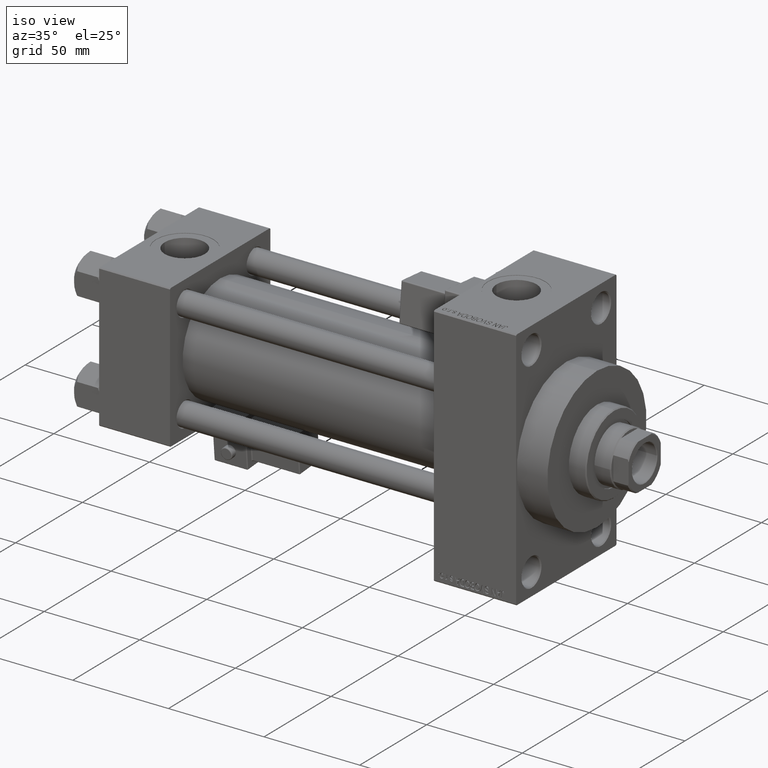
[diagram: clean part render]
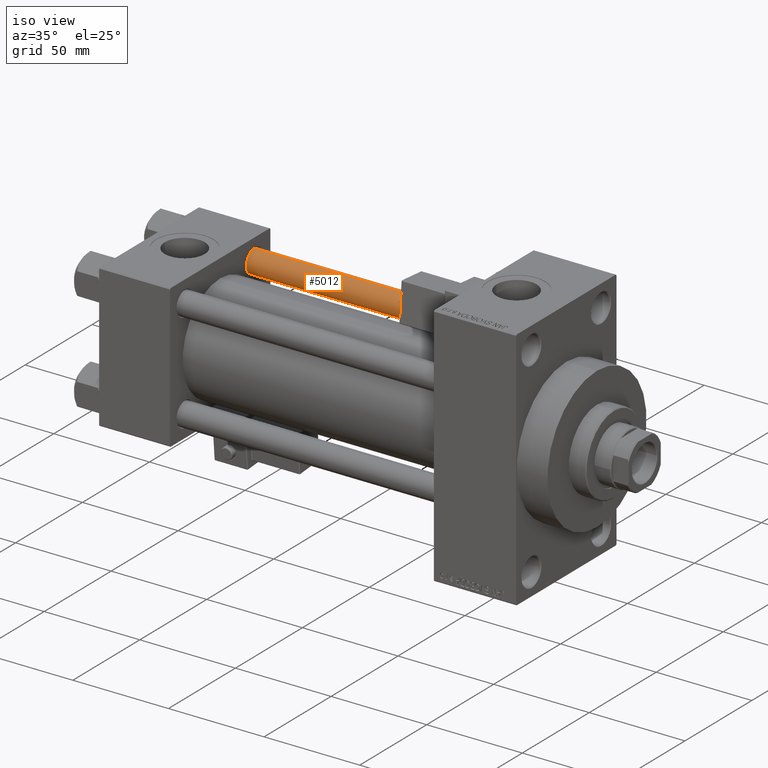
[diagram: same view with one face highlighted and labeled with its STEP entity id]
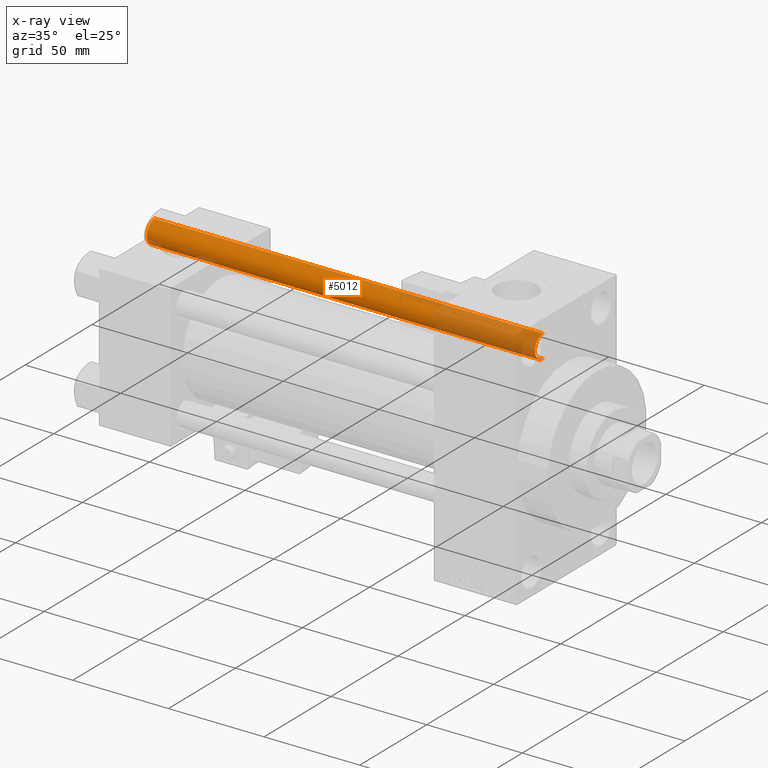
[diagram: x-ray of the same camera — body ghosted, the highlighted face saturated]
A machine part, iso view. The second image highlights one B-rep face of the part: STEP entity #5012.
The next image is the same camera in x-ray: the body ghosted, the highlighted face saturated — about 30% of this face is hidden behind the body in this view.
In plain terms, the highlighted cylindrical surface (edge-blend (fillet) strip) has radius 6 mm, axis along (1, -0, -0).
Its self-contained STEP definition (entity closure, byte-faithful):
#203 = DIRECTION ( 'NONE',  ( -0.000000000000000000, -0.000000000000000000, -1.000000000000000000 ) ) ;
#806 = DIRECTION ( 'NONE',  ( 0.000000000000000000, 0.000000000000000000, -1.000000000000000000 ) ) ;
#2845 = CIRCLE ( 'NONE', #37181, 6.000000000000000888 ) ;
#4430 = CARTESIAN_POINT ( 'NONE',  ( 6.000000000000000888, 7.347880794884120722E-16, 204.0000000000000000 ) ) ;
#5012 = ADVANCED_FACE ( 'NONE', ( #43100 ), #8858, .T. ) ;
#5160 = CARTESIAN_POINT ( 'NONE',  ( 6.000000000000000888, 7.347880794884120722E-16, 203.5000000000000000 ) ) ;
#6825 = CARTESIAN_POINT ( 'NONE',  ( -6.000000000000000888, 0.000000000000000000, 203.5000000000000000 ) ) ;
#8211 = CARTESIAN_POINT ( 'NONE',  ( 6.000000000000000888, 7.347880794884120722E-16, 0.5000000000000281997 ) ) ;
#8858 = CYLINDRICAL_SURFACE ( 'NONE', #32470, 6.000000000000000888 ) ;
#9591 = CARTESIAN_POINT ( 'NONE',  ( 0.000000000000000000, 0.000000000000000000, 204.0000000000000000 ) ) ;
#10272 = ORIENTED_EDGE ( 'NONE', *, *, #39549, .F. ) ;
#11433 = LINE ( 'NONE', #26698, #42514 ) ;
#12290 = DIRECTION ( 'NONE',  ( 1.000000000000000000, 0.000000000000000000, 0.000000000000000000 ) ) ;
#16897 = DIRECTION ( 'NONE',  ( 1.000000000000000000, 0.000000000000000000, 0.000000000000000000 ) ) ;
#18686 = VECTOR ( 'NONE', #203, 1000.000000000000000 ) ;
#20122 = ORIENTED_EDGE ( 'NONE', *, *, #32682, .T. ) ;
#22934 = DIRECTION ( 'NONE',  ( -0.000000000000000000, -0.000000000000000000, -1.000000000000000000 ) ) ;
#23884 = EDGE_CURVE ( 'NONE', #33738, #32689, #11433, .T. ) ;
#26698 = CARTESIAN_POINT ( 'NONE',  ( -6.000000000000000888, 0.000000000000000000, 204.0000000000000000 ) ) ;
#27459 = ORIENTED_EDGE ( 'NONE', *, *, #23884, .T. ) ;
#28159 = DIRECTION ( 'NONE',  ( -0.000000000000000000, -0.000000000000000000, 1.000000000000000000 ) ) ;
#32108 = DIRECTION ( 'NONE',  ( -0.000000000000000000, -0.000000000000000000, -1.000000000000000000 ) ) ;
#32470 = AXIS2_PLACEMENT_3D ( 'NONE', #9591, #32108, #35620 ) ;
#32682 = EDGE_CURVE ( 'NONE', #32689, #40288, #2845, .T. ) ;
#32689 = VERTEX_POINT ( 'NONE', #47125 ) ;
#33738 = VERTEX_POINT ( 'NONE', #6825 ) ;
#33994 = AXIS2_PLACEMENT_3D ( 'NONE', #43762, #806, #12290 ) ;
#34354 = VERTEX_POINT ( 'NONE', #5160 ) ;
#34689 = LINE ( 'NONE', #4430, #18686 ) ;
#35620 = DIRECTION ( 'NONE',  ( -1.000000000000000000, 0.000000000000000000, 0.000000000000000000 ) ) ;
#36175 = ORIENTED_EDGE ( 'NONE', *, *, #43902, .T. ) ;
#37181 = AXIS2_PLACEMENT_3D ( 'NONE', #43138, #28159, #16897 ) ;
#39549 = EDGE_CURVE ( 'NONE', #34354, #40288, #34689, .T. ) ;
#39942 = EDGE_LOOP ( 'NONE', ( #10272, #36175, #27459, #20122 ) ) ;
#40288 = VERTEX_POINT ( 'NONE', #8211 ) ;
#40369 = CIRCLE ( 'NONE', #33994, 6.000000000000000888 ) ;
#42514 = VECTOR ( 'NONE', #22934, 1000.000000000000000 ) ;
#43100 = FACE_OUTER_BOUND ( 'NONE', #39942, .T. ) ;
#43138 = CARTESIAN_POINT ( 'NONE',  ( 0.000000000000000000, 0.000000000000000000, 0.5000000000000281997 ) ) ;
#43762 = CARTESIAN_POINT ( 'NONE',  ( 0.000000000000000000, 0.000000000000000000, 203.5000000000000000 ) ) ;
#43902 = EDGE_CURVE ( 'NONE', #34354, #33738, #40369, .T. ) ;
#47125 = CARTESIAN_POINT ( 'NONE',  ( -6.000000000000000888, 0.000000000000000000, 0.5000000000000281997 ) ) ;